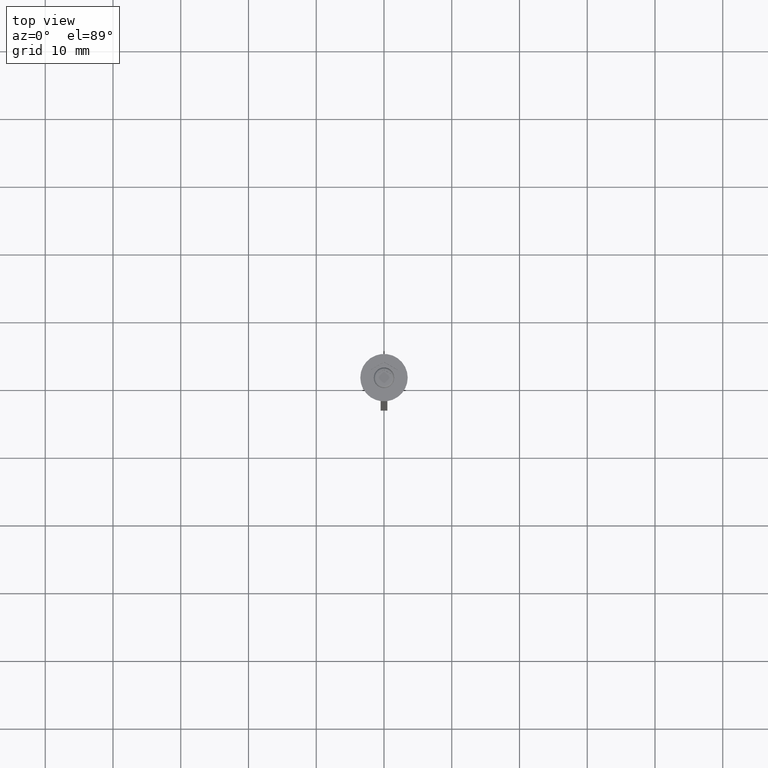
[diagram: clean part render]
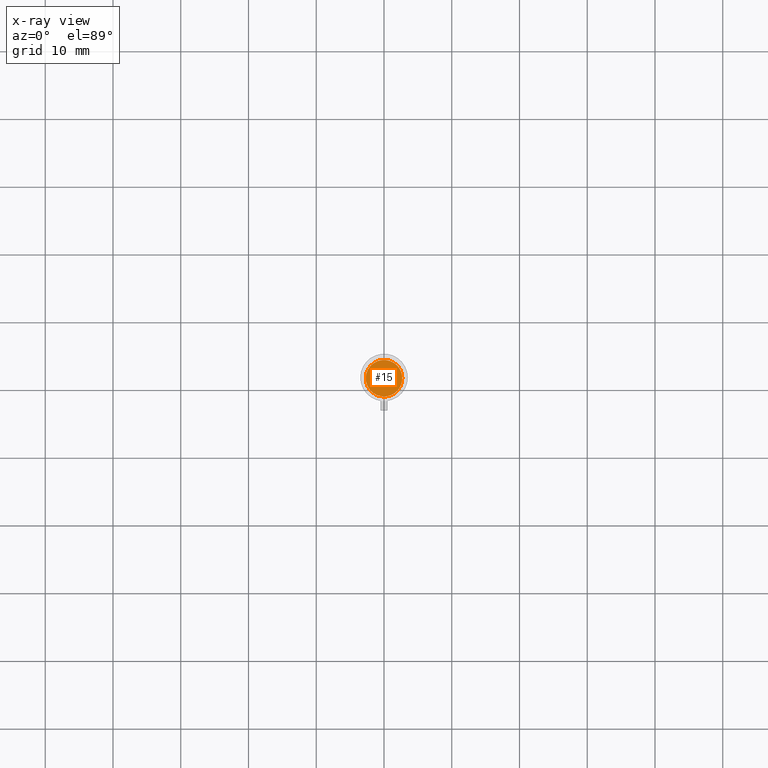
[diagram: x-ray — body ghosted, one internal face saturated and labeled with its STEP entity id]
A machine part, top view, then the same camera in x-ray: the body is ghosted and one INTERNAL B-rep face — a face not visible from any outside direction — is saturated and labeled: STEP entity #15.
In plain terms, the highlighted planar face has unit normal (0, 0, -1).
Its self-contained STEP definition (entity closure, byte-faithful):
#15 = ADVANCED_FACE ( 'NONE', ( #1295 ), #757, .F. ) ;
#35 = DIRECTION ( 'NONE',  ( 0.000000000000000000, 0.000000000000000000, -1.000000000000000000 ) ) ;
#40 = VERTEX_POINT ( 'NONE', #747 ) ;
#80 = CIRCLE ( 'NONE', #1808, 2.700000000000002398 ) ;
#198 = CIRCLE ( 'NONE', #343, 2.700000000000002398 ) ;
#280 = CARTESIAN_POINT ( 'NONE',  ( 0.000000000000000000, 0.000000000000000000, -5.500000000000000000 ) ) ;
#334 = EDGE_LOOP ( 'NONE', ( #1047, #985 ) ) ;
#343 = AXIS2_PLACEMENT_3D ( 'NONE', #280, #972, #2225 ) ;
#673 = CARTESIAN_POINT ( 'NONE',  ( 2.700000000000002398, 3.490243377569959512E-16, -5.500000000000000000 ) ) ;
#747 = CARTESIAN_POINT ( 'NONE',  ( -2.700000000000002398, 0.000000000000000000, -5.500000000000000000 ) ) ;
#757 = PLANE ( 'NONE',  #2067 ) ;
#875 = DIRECTION ( 'NONE',  ( -0.000000000000000000, -0.000000000000000000, 1.000000000000000000 ) ) ;
#948 = EDGE_CURVE ( 'NONE', #2040, #40, #198, .T. ) ;
#972 = DIRECTION ( 'NONE',  ( -0.000000000000000000, -0.000000000000000000, 1.000000000000000000 ) ) ;
#985 = ORIENTED_EDGE ( 'NONE', *, *, #948, .T. ) ;
#1047 = ORIENTED_EDGE ( 'NONE', *, *, #1477, .T. ) ;
#1205 = DIRECTION ( 'NONE',  ( -1.000000000000000000, 0.000000000000000000, 0.000000000000000000 ) ) ;
#1295 = FACE_OUTER_BOUND ( 'NONE', #334, .T. ) ;
#1477 = EDGE_CURVE ( 'NONE', #40, #2040, #80, .T. ) ;
#1808 = AXIS2_PLACEMENT_3D ( 'NONE', #2274, #875, #1205 ) ;
#2040 = VERTEX_POINT ( 'NONE', #673 ) ;
#2067 = AXIS2_PLACEMENT_3D ( 'NONE', #2179, #35, #2209 ) ;
#2179 = CARTESIAN_POINT ( 'NONE',  ( 0.000000000000000000, 0.000000000000000000, -5.500000000000000000 ) ) ;
#2209 = DIRECTION ( 'NONE',  ( -1.000000000000000000, 0.000000000000000000, -0.000000000000000000 ) ) ;
#2225 = DIRECTION ( 'NONE',  ( -1.000000000000000000, 0.000000000000000000, 0.000000000000000000 ) ) ;
#2274 = CARTESIAN_POINT ( 'NONE',  ( 0.000000000000000000, 0.000000000000000000, -5.500000000000000000 ) ) ;